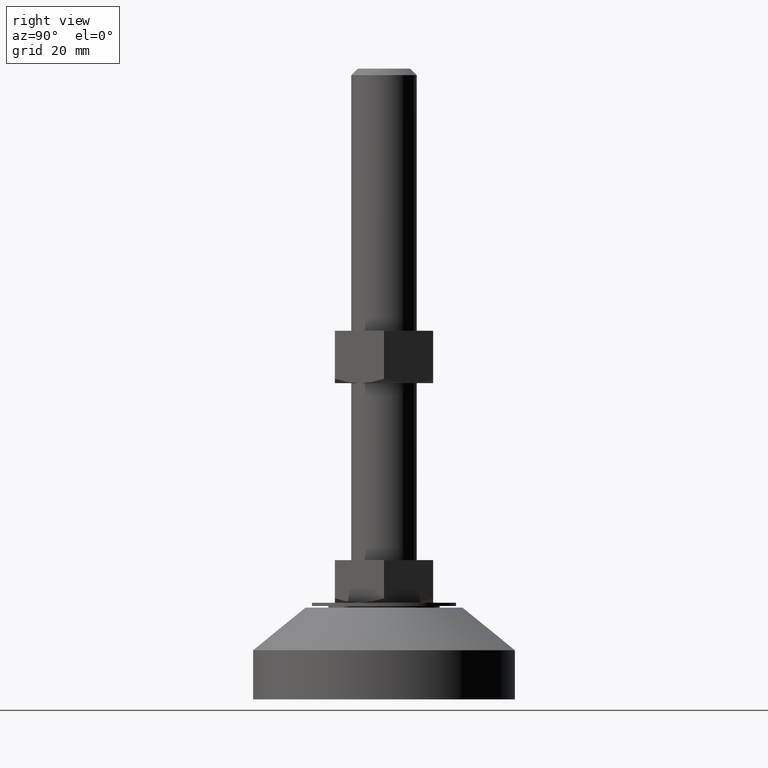
[diagram: clean part render]
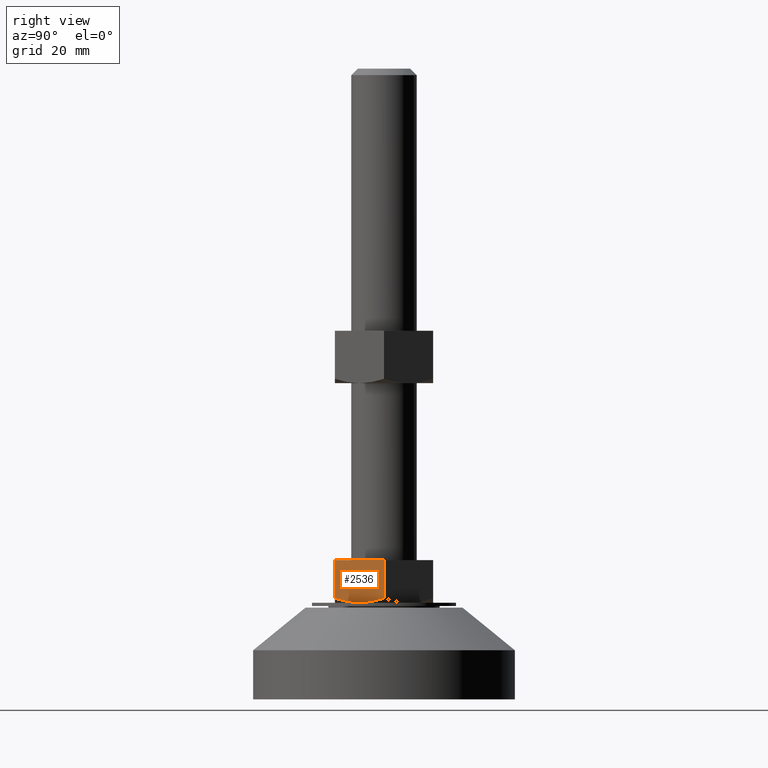
[diagram: same view with one face highlighted and labeled with its STEP entity id]
A machine part, right view. The second image highlights one B-rep face of the part: STEP entity #2536.
In plain terms, the highlighted face is a freeform B-spline surface patch.
Its self-contained STEP definition (entity closure, byte-faithful):
#2198=CARTESIAN_POINT('',(17.320508075688199,5.684342E-014,42.500000000000000));
#2199=VERTEX_POINT('',#2198);
#2228=CARTESIAN_POINT('',(8.660254037843760,-15.0,42.500000000000000));
#2229=VERTEX_POINT('',#2228);
#2235=CARTESIAN_POINT('',(8.660254037843760,-15.0,42.500000000000000));
#2236=CARTESIAN_POINT('',(17.320508075688199,5.684342E-014,42.500000000000000));
#2237=QUASI_UNIFORM_CURVE('',1,(#2235,#2236),.UNSPECIFIED.,.F.,.U.);
#2238=EDGE_CURVE('',#2229,#2199,#2237,.T.);
#2277=CARTESIAN_POINT('',(17.320508075688949,1.405126E-012,30.839745962165050));
#2278=VERTEX_POINT('',#2277);
#2279=CARTESIAN_POINT('',(17.320508075688199,5.684342E-014,42.500000000000000));
#2280=CARTESIAN_POINT('',(17.320508075688949,1.405126E-012,30.839745962165050));
#2281=QUASI_UNIFORM_CURVE('',1,(#2279,#2280),.UNSPECIFIED.,.F.,.U.);
#2282=EDGE_CURVE('',#2199,#2278,#2281,.T.);
#2451=CARTESIAN_POINT('',(8.660254037843171,-15.000000000000901,30.839745962165050));
#2452=VERTEX_POINT('',#2451);
#2471=CARTESIAN_POINT('',(8.660254037843760,-15.0,42.500000000000000));
#2472=CARTESIAN_POINT('',(8.660254037843171,-15.000000000000901,30.839745962165050));
#2473=QUASI_UNIFORM_CURVE('',1,(#2471,#2472),.UNSPECIFIED.,.F.,.U.);
#2474=EDGE_CURVE('',#2229,#2452,#2473,.T.);
#2496=CARTESIAN_POINT('',(17.753087748094028,0.749249970928649,28.850650025196519));
#2497=CARTESIAN_POINT('',(8.227674133151876,-15.749250373259439,28.850650025196519));
#2498=CARTESIAN_POINT('',(17.753087748094028,0.749249970928649,43.149350323490637));
#2499=CARTESIAN_POINT('',(8.227674133151876,-15.749250373259439,43.149350323490637));
#2500=B_SPLINE_SURFACE_WITH_KNOTS('',1,1,((#2496,#2498),(#2497,#2499)),.UNSPECIFIED.,.F.,.F.,.U.,(2,2),(2,2),(0.0,19.050827229884259),(0.0,14.298700298294120),.UNSPECIFIED.);
#2501=CARTESIAN_POINT('',(12.990381056766060,-7.499999999999750,29.500000000000000));
#2502=VERTEX_POINT('',#2501);
#2503=CARTESIAN_POINT('',(17.320508075688949,1.405126E-012,30.839745962165050));
#2504=CARTESIAN_POINT('',(16.613480354092541,-1.224607936163080,30.431543316767350));
#2505=CARTESIAN_POINT('',(15.901297954757460,-2.458144036067741,30.095110476245711));
#2506=CARTESIAN_POINT('',(14.821884865747510,-4.327742348587846,29.745558985831568));
#2507=CARTESIAN_POINT('',(14.460219468945320,-4.954165191188794,29.654953438834099));
#2508=CARTESIAN_POINT('',(13.732676765448380,-6.214306118321508,29.532385768631290));
#2509=CARTESIAN_POINT('',(13.366795819235961,-6.848030506682791,29.500474319296561));
#2510=CARTESIAN_POINT('',(12.995898215202260,-7.490444001274716,29.500001757458570));
#2511=CARTESIAN_POINT('',(12.993139699088660,-7.495221891336966,29.500000000562530));
#2512=CARTESIAN_POINT('',(12.990381056714099,-7.500000000089631,29.500000001628031));
#2513=B_SPLINE_CURVE_WITH_KNOTS('',3,(#2503,#2504,#2505,#2506,#2507,#2508,#2509,#2510,#2511,#2512),.UNSPECIFIED.,.F.,.U.,(4,2,2,2,4),(0.0,0.250000000000000,0.375000000000000,0.500000000000001,0.500936598769625),.UNSPECIFIED.);
#2514=EDGE_CURVE('',#2278,#2502,#2513,.T.);
#2515=ORIENTED_EDGE('',*,*,#2514,.F.);
#2516=ORIENTED_EDGE('',*,*,#2282,.F.);
#2517=ORIENTED_EDGE('',*,*,#2238,.F.);
#2518=ORIENTED_EDGE('',*,*,#2474,.T.);
#2519=CARTESIAN_POINT('',(12.990381056766060,-7.499999999999750,29.500000000000000));
#2520=CARTESIAN_POINT('',(12.901096470844340,-7.654645439148801,29.500000036115999));
#2521=CARTESIAN_POINT('',(12.811679624323300,-7.809519960375820,29.501841569814321));
#2522=CARTESIAN_POINT('',(12.629812694746279,-8.124522722619771,29.509347877224329));
#2523=CARTESIAN_POINT('',(12.537502733118290,-8.284408266204190,29.515126012679360));
#2524=CARTESIAN_POINT('',(12.261257601409170,-8.762878869667942,29.538242611801159));
#2525=CARTESIAN_POINT('',(12.077734031787100,-9.080751016639761,29.561379370471521));
#2526=CARTESIAN_POINT('',(11.528999802975891,-10.031186580792900,29.652963666495658));
#2527=CARTESIAN_POINT('',(11.165629917420540,-10.660561684515271,29.743637065373989));
#2528=CARTESIAN_POINT('',(10.081989559210131,-12.537481842067811,30.093768839119100));
#2529=CARTESIAN_POINT('',(9.368163177432114,-13.773865403090390,30.431034429852151));
#2530=CARTESIAN_POINT('',(8.660254037843112,-15.000000000000909,30.839745962164841));
#2531=B_SPLINE_CURVE_WITH_KNOTS('',3,(#2519,#2520,#2521,#2522,#2523,#2524,#2525,#2526,#2527,#2528,#2529,#2530),.UNSPECIFIED.,.F.,.U.,(4,2,2,2,2,4),(0.500936598791467,0.531250000000001,0.562500000000001,0.625000000000001,0.750000000000000,1.0),.UNSPECIFIED.);
#2532=EDGE_CURVE('',#2502,#2452,#2531,.T.);
#2533=ORIENTED_EDGE('',*,*,#2532,.F.);
#2534=EDGE_LOOP('',(#2515,#2516,#2517,#2518,#2533));
#2535=FACE_OUTER_BOUND('',#2534,.T.);
#2536=ADVANCED_FACE('',(#2535),#2500,.F.);